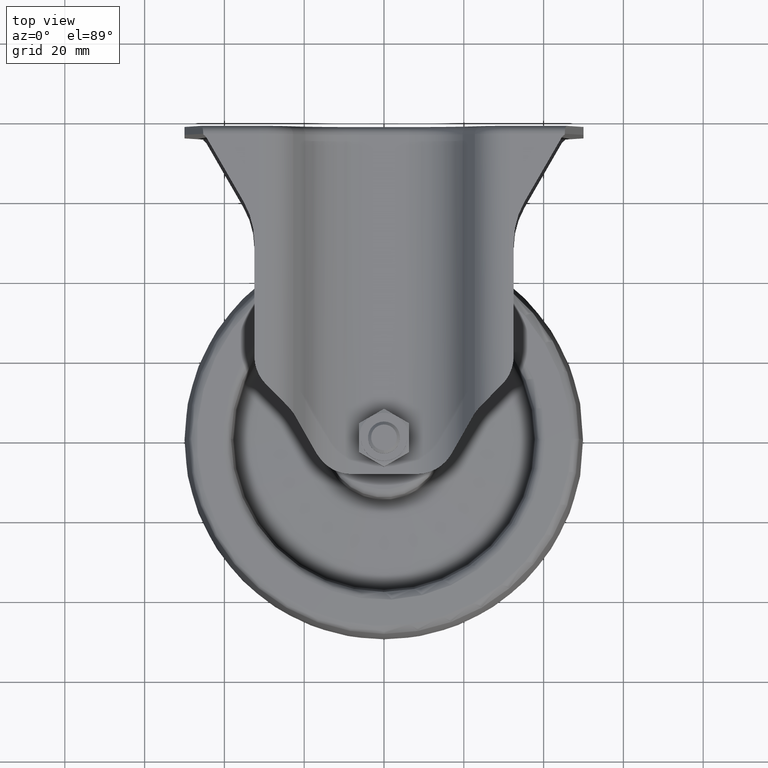
[diagram: clean part render]
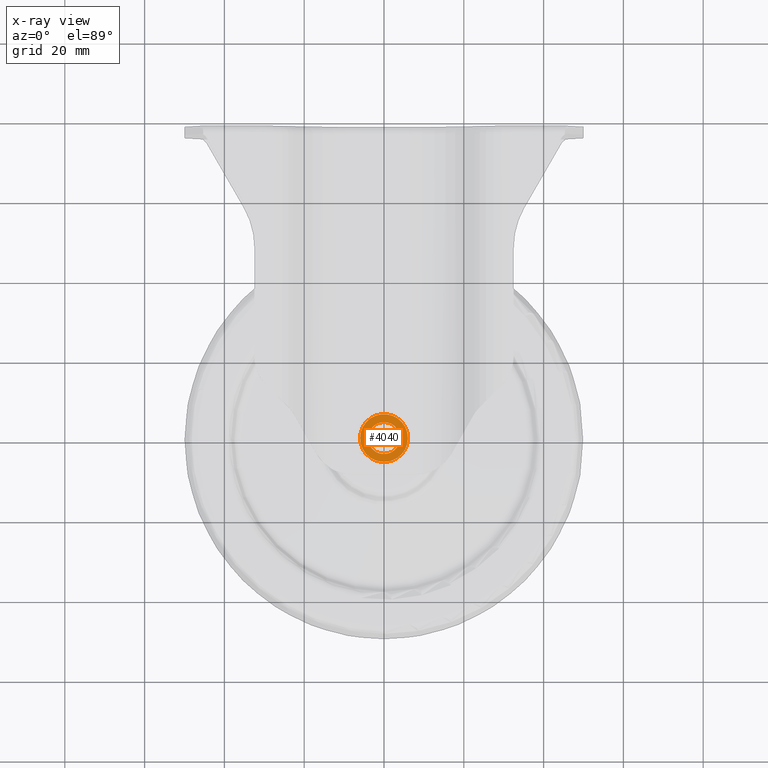
[diagram: x-ray — body ghosted, one internal face saturated and labeled with its STEP entity id]
A machine part, top view, then the same camera in x-ray: the body is ghosted and one INTERNAL B-rep face — a face not visible from any outside direction — is saturated and labeled: STEP entity #4040.
In plain terms, the highlighted planar face has unit normal (0, 0, -1).
Its self-contained STEP definition (entity closure, byte-faithful):
#192=FACE_BOUND('',#551,.T.);
#217=PLANE('',#4307);
#312=FACE_OUTER_BOUND('',#550,.T.);
#550=EDGE_LOOP('',(#2534));
#551=EDGE_LOOP('',(#2535));
#1349=CIRCLE('',#4308,6.);
#1350=CIRCLE('',#4309,4.);
#1563=VERTEX_POINT('',#6046);
#1564=VERTEX_POINT('',#6048);
#1936=EDGE_CURVE('',#1563,#1563,#1349,.T.);
#1937=EDGE_CURVE('',#1564,#1564,#1350,.T.);
#2534=ORIENTED_EDGE('',*,*,#1936,.T.);
#2535=ORIENTED_EDGE('',*,*,#1937,.F.);
#4040=ADVANCED_FACE('',(#312,#192),#217,.T.);
#4307=AXIS2_PLACEMENT_3D('',#6045,#4806,#4807);
#4308=AXIS2_PLACEMENT_3D('',#6047,#4808,#4809);
#4309=AXIS2_PLACEMENT_3D('',#6049,#4810,#4811);
#4806=DIRECTION('center_axis',(0.,0.,-1.));
#4807=DIRECTION('ref_axis',(-1.,0.,0.));
#4808=DIRECTION('center_axis',(0.,0.,-1.));
#4809=DIRECTION('ref_axis',(1.,0.,0.));
#4810=DIRECTION('center_axis',(0.,0.,-1.));
#4811=DIRECTION('ref_axis',(0.,1.,0.));
#6045=CARTESIAN_POINT('Origin',(1.25624201796279E-15,5.12916666666667,24.5));
#6046=CARTESIAN_POINT('',(-6.,7.34763812293426E-16,24.5));
#6047=CARTESIAN_POINT('Origin',(0.,0.,24.5));
#6048=CARTESIAN_POINT('',(-4.89842541528951E-16,-4.,24.5));
#6049=CARTESIAN_POINT('Origin',(0.,0.,24.5));